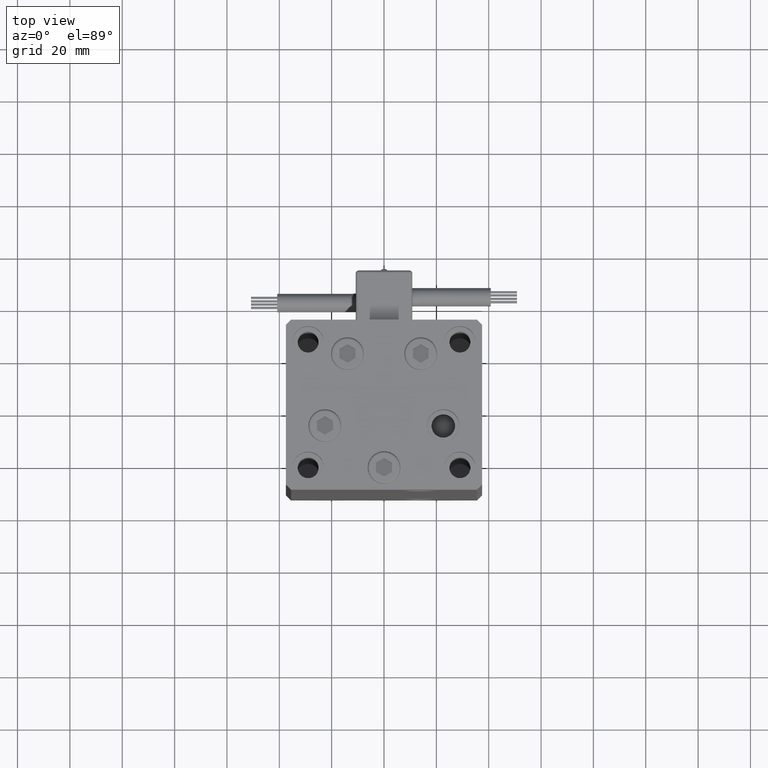
[diagram: clean part render]
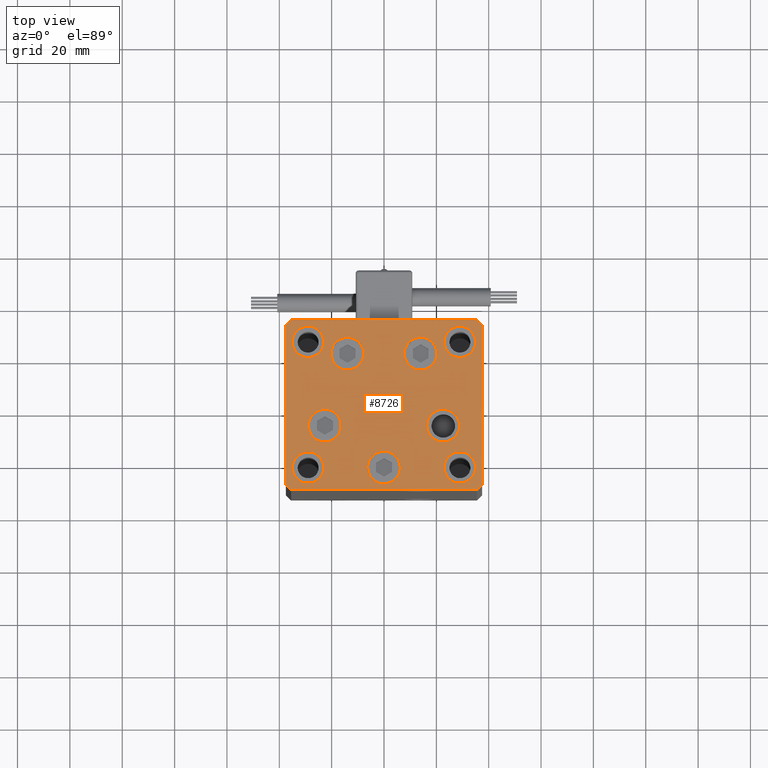
[diagram: same view with one face highlighted and labeled with its STEP entity id]
A machine part, top view. The second image highlights one B-rep face of the part: STEP entity #8726.
In plain terms, the highlighted planar face has unit normal (0, 0, 1).
Its self-contained STEP definition (entity closure, byte-faithful):
#148 = DIRECTION ( 'NONE',  ( 1.000000000000000000, 0.000000000000000000, 0.000000000000000000 ) ) ;
#366 = DIRECTION ( 'NONE',  ( 0.000000000000000000, 0.000000000000000000, 1.000000000000000000 ) ) ;
#425 = EDGE_CURVE ( 'NONE', #35460, #48251, #51963, .T. ) ;
#818 = EDGE_CURVE ( 'NONE', #28901, #26019, #24781, .T. ) ;
#896 = AXIS2_PLACEMENT_3D ( 'NONE', #24297, #28293, #52529 ) ;
#1064 = DIRECTION ( 'NONE',  ( 0.000000000000000000, 0.000000000000000000, 1.000000000000000000 ) ) ;
#1675 = LINE ( 'NONE', #5938, #32231 ) ;
#2451 = AXIS2_PLACEMENT_3D ( 'NONE', #14159, #17886, #47931 ) ;
#2489 = DIRECTION ( 'NONE',  ( -0.000000000000000000, 0.000000000000000000, 1.000000000000000000 ) ) ;
#2692 = DIRECTION ( 'NONE',  ( 1.000000000000000000, 0.000000000000000000, 0.000000000000000000 ) ) ;
#2762 = DIRECTION ( 'NONE',  ( 1.000000000000000000, 0.000000000000000000, 0.000000000000000000 ) ) ;
#3009 = VERTEX_POINT ( 'NONE', #30536 ) ;
#3216 = AXIS2_PLACEMENT_3D ( 'NONE', #21017, #37264, #44996 ) ;
#3414 = AXIS2_PLACEMENT_3D ( 'NONE', #33449, #45156, #148 ) ;
#3683 = ORIENTED_EDGE ( 'NONE', *, *, #9366, .T. ) ;
#4102 = CIRCLE ( 'NONE', #48344, 6.250000000000001776 ) ;
#4105 = DIRECTION ( 'NONE',  ( 0.000000000000000000, -0.000000000000000000, -1.000000000000000000 ) ) ;
#4222 = EDGE_CURVE ( 'NONE', #28403, #21371, #8697, .T. ) ;
#4321 = EDGE_LOOP ( 'NONE', ( #35862, #47704 ) ) ;
#4488 = DIRECTION ( 'NONE',  ( 0.000000000000000000, 0.000000000000000000, 1.000000000000000000 ) ) ;
#4495 = CARTESIAN_POINT ( 'NONE',  ( -37.50000000000001421, 30.49999999999998579, 0.000000000000000000 ) ) ;
#4711 = VERTEX_POINT ( 'NONE', #26300 ) ;
#4914 = VERTEX_POINT ( 'NONE', #33909 ) ;
#4915 = CIRCLE ( 'NONE', #3216, 5.999999999999998224 ) ;
#4934 = DIRECTION ( 'NONE',  ( 1.000000000000000000, 0.000000000000000000, 0.000000000000000000 ) ) ;
#5632 = ORIENTED_EDGE ( 'NONE', *, *, #23736, .T. ) ;
#5938 = CARTESIAN_POINT ( 'NONE',  ( 35.49999999999992184, 32.50000000000000711, 0.000000000000000000 ) ) ;
#5948 = VERTEX_POINT ( 'NONE', #20402 ) ;
#6260 = DIRECTION ( 'NONE',  ( 0.000000000000000000, -0.000000000000000000, -1.000000000000000000 ) ) ;
#6360 = CARTESIAN_POINT ( 'NONE',  ( -37.49999999999998579, -30.50000000000001421, 0.000000000000000000 ) ) ;
#6682 = DIRECTION ( 'NONE',  ( 0.000000000000000000, -0.000000000000000000, -1.000000000000000000 ) ) ;
#6946 = VERTEX_POINT ( 'NONE', #29527 ) ;
#7213 = AXIS2_PLACEMENT_3D ( 'NONE', #26963, #6682, #2692 ) ;
#7391 = EDGE_CURVE ( 'NONE', #51587, #7745, #9691, .T. ) ;
#7555 = ORIENTED_EDGE ( 'NONE', *, *, #17415, .T. ) ;
#7745 = VERTEX_POINT ( 'NONE', #47679 ) ;
#8069 = DIRECTION ( 'NONE',  ( 1.000000000000000000, 0.000000000000000000, 0.000000000000000000 ) ) ;
#8100 = DIRECTION ( 'NONE',  ( 1.000000000000000000, 0.000000000000000000, 0.000000000000000000 ) ) ;
#8697 = CIRCLE ( 'NONE', #45287, 6.250000000000000000 ) ;
#8726 = ADVANCED_FACE ( 'NONE', ( #15811, #31547, #39269, #23305, #23029, #39803, #47260, #19539, #19276, #39542 ), #10750, .T. ) ;
#8841 = CARTESIAN_POINT ( 'NONE',  ( -13.99106857963322703, 19.49999999999999645, 0.000000000000000000 ) ) ;
#9103 = EDGE_CURVE ( 'NONE', #4914, #43649, #31042, .T. ) ;
#9209 = EDGE_CURVE ( 'NONE', #7745, #51587, #30209, .T. ) ;
#9366 = EDGE_CURVE ( 'NONE', #27630, #4711, #44573, .T. ) ;
#9451 = AXIS2_PLACEMENT_3D ( 'NONE', #22658, #1064, #17319 ) ;
#9465 = DIRECTION ( 'NONE',  ( 0.000000000000000000, -0.000000000000000000, -1.000000000000000000 ) ) ;
#9567 = DIRECTION ( 'NONE',  ( -0.7071067811865426878, -0.7071067811865524577, 0.000000000000000000 ) ) ;
#9679 = EDGE_CURVE ( 'NONE', #3009, #14343, #37182, .T. ) ;
#9691 = CIRCLE ( 'NONE', #39480, 6.250000000000000000 ) ;
#9763 = AXIS2_PLACEMENT_3D ( 'NONE', #43991, #39995, #15212 ) ;
#9830 = ORIENTED_EDGE ( 'NONE', *, *, #9209, .T. ) ;
#9943 = DIRECTION ( 'NONE',  ( -1.000000000000000000, -1.954618001100629052E-16, 0.000000000000000000 ) ) ;
#10285 = VECTOR ( 'NONE', #50687, 999.9999999999998863 ) ;
#10493 = VERTEX_POINT ( 'NONE', #12030 ) ;
#10548 = ORIENTED_EDGE ( 'NONE', *, *, #7391, .T. ) ;
#10730 = EDGE_LOOP ( 'NONE', ( #25246, #19054 ) ) ;
#10750 = PLANE ( 'NONE',  #11444 ) ;
#10984 = ORIENTED_EDGE ( 'NONE', *, *, #49451, .F. ) ;
#11161 = AXIS2_PLACEMENT_3D ( 'NONE', #13209, #9465, #4934 ) ;
#11215 = CARTESIAN_POINT ( 'NONE',  ( -35.00000000000000711, -23.99999999999999289, 0.000000000000000000 ) ) ;
#11444 = AXIS2_PLACEMENT_3D ( 'NONE', #43257, #2489, #2762 ) ;
#12030 = CARTESIAN_POINT ( 'NONE',  ( -37.50000000000001421, 30.49999999999998579, 0.000000000000000000 ) ) ;
#12111 = CARTESIAN_POINT ( 'NONE',  ( 13.99106857963322348, 19.50000000000000000, 0.000000000000000000 ) ) ;
#12475 = CARTESIAN_POINT ( 'NONE',  ( -23.00000000000001421, -23.99999999999999289, 0.000000000000000000 ) ) ;
#12610 = CARTESIAN_POINT ( 'NONE',  ( 35.50000000000000711, -32.50000000000000711, 0.000000000000000000 ) ) ;
#12718 = EDGE_LOOP ( 'NONE', ( #28463, #44499 ) ) ;
#13195 = DIRECTION ( 'NONE',  ( -1.478780668045802821E-15, 1.000000000000000000, 0.000000000000000000 ) ) ;
#13209 = CARTESIAN_POINT ( 'NONE',  ( 22.62741699796951877, -8.000000000000000000, 0.000000000000000000 ) ) ;
#13343 = CARTESIAN_POINT ( 'NONE',  ( -37.49999999999998579, -30.50000000000001421, 0.000000000000000000 ) ) ;
#13467 = CARTESIAN_POINT ( 'NONE',  ( 37.49999999999992184, 30.50000000000001066, 0.000000000000000000 ) ) ;
#13849 = DIRECTION ( 'NONE',  ( 0.000000000000000000, -0.000000000000000000, -1.000000000000000000 ) ) ;
#14159 = CARTESIAN_POINT ( 'NONE',  ( 29.00000000000001066, 24.00000000000000711, 0.000000000000000000 ) ) ;
#14242 = LINE ( 'NONE', #42226, #22613 ) ;
#14343 = VERTEX_POINT ( 'NONE', #13467 ) ;
#14867 = EDGE_CURVE ( 'NONE', #22699, #40765, #46103, .T. ) ;
#15045 = CARTESIAN_POINT ( 'NONE',  ( -6.249999999999997335, -24.00000000000000000, 0.000000000000000000 ) ) ;
#15212 = DIRECTION ( 'NONE',  ( 1.000000000000000000, 0.000000000000000000, 0.000000000000000000 ) ) ;
#15811 = FACE_BOUND ( 'NONE', #20854, .T. ) ;
#16131 = ORIENTED_EDGE ( 'NONE', *, *, #4222, .T. ) ;
#17319 = DIRECTION ( 'NONE',  ( 1.000000000000000000, 0.000000000000000000, 0.000000000000000000 ) ) ;
#17415 = EDGE_CURVE ( 'NONE', #40765, #31739, #14242, .T. ) ;
#17863 = CARTESIAN_POINT ( 'NONE',  ( -16.37741699796951877, -8.000000000000005329, 0.000000000000000000 ) ) ;
#17886 = DIRECTION ( 'NONE',  ( 0.000000000000000000, 0.000000000000000000, 1.000000000000000000 ) ) ;
#18560 = DIRECTION ( 'NONE',  ( 1.000000000000000000, 0.000000000000000000, 0.000000000000000000 ) ) ;
#18800 = ORIENTED_EDGE ( 'NONE', *, *, #9679, .T. ) ;
#18976 = CARTESIAN_POINT ( 'NONE',  ( -29.00000000000001066, -23.99999999999999289, 0.000000000000000000 ) ) ;
#19054 = ORIENTED_EDGE ( 'NONE', *, *, #425, .T. ) ;
#19276 = FACE_BOUND ( 'NONE', #4321, .T. ) ;
#19539 = FACE_BOUND ( 'NONE', #40832, .T. ) ;
#19669 = ORIENTED_EDGE ( 'NONE', *, *, #25514, .T. ) ;
#19989 = ORIENTED_EDGE ( 'NONE', *, *, #44684, .F. ) ;
#20402 = CARTESIAN_POINT ( 'NONE',  ( -35.50000000000002842, 32.49999999999999289, 0.000000000000000000 ) ) ;
#20816 = EDGE_CURVE ( 'NONE', #31739, #3009, #32032, .T. ) ;
#20854 = EDGE_LOOP ( 'NONE', ( #19669, #16131 ) ) ;
#21017 = CARTESIAN_POINT ( 'NONE',  ( -29.00000000000001066, 24.00000000000000711, 0.000000000000000000 ) ) ;
#21351 = EDGE_CURVE ( 'NONE', #4711, #27630, #31158, .T. ) ;
#21371 = VERTEX_POINT ( 'NONE', #41392 ) ;
#21586 = DIRECTION ( 'NONE',  ( 1.000000000000000000, 0.000000000000000000, 0.000000000000000000 ) ) ;
#22068 = DIRECTION ( 'NONE',  ( 1.000000000000000000, 0.000000000000000000, 0.000000000000000000 ) ) ;
#22227 = AXIS2_PLACEMENT_3D ( 'NONE', #31354, #43595, #18560 ) ;
#22297 = VERTEX_POINT ( 'NONE', #42827 ) ;
#22462 = CARTESIAN_POINT ( 'NONE',  ( 37.49999999999992184, 30.50000000000001066, 0.000000000000000000 ) ) ;
#22613 = VECTOR ( 'NONE', #34257, 1000.000000000000000 ) ;
#22658 = CARTESIAN_POINT ( 'NONE',  ( -29.00000000000001066, 24.00000000000000711, 0.000000000000000000 ) ) ;
#22699 = VERTEX_POINT ( 'NONE', #6360 ) ;
#22989 = DIRECTION ( 'NONE',  ( 0.000000000000000000, 0.000000000000000000, 1.000000000000000000 ) ) ;
#23029 = FACE_BOUND ( 'NONE', #10730, .T. ) ;
#23079 = CARTESIAN_POINT ( 'NONE',  ( -23.00000000000001421, 24.00000000000000711, 0.000000000000000000 ) ) ;
#23253 = DIRECTION ( 'NONE',  ( 1.000000000000000000, 0.000000000000000000, 0.000000000000000000 ) ) ;
#23305 = FACE_BOUND ( 'NONE', #26169, .T. ) ;
#23736 = EDGE_CURVE ( 'NONE', #10493, #22699, #48755, .T. ) ;
#24297 = CARTESIAN_POINT ( 'NONE',  ( -22.62741699796951877, -8.000000000000005329, 0.000000000000000000 ) ) ;
#24605 = DIRECTION ( 'NONE',  ( 0.000000000000000000, -0.000000000000000000, -1.000000000000000000 ) ) ;
#24781 = CIRCLE ( 'NONE', #22227, 5.999999999999998224 ) ;
#24920 = CIRCLE ( 'NONE', #38508, 6.000000000000005329 ) ;
#25147 = DIRECTION ( 'NONE',  ( 1.000000000000000000, 0.000000000000000000, 0.000000000000000000 ) ) ;
#25246 = ORIENTED_EDGE ( 'NONE', *, *, #45076, .T. ) ;
#25287 = DIRECTION ( 'NONE',  ( 4.550094363217855288E-16, -1.000000000000000000, 0.000000000000000000 ) ) ;
#25514 = EDGE_CURVE ( 'NONE', #21371, #28403, #37232, .T. ) ;
#25560 = ORIENTED_EDGE ( 'NONE', *, *, #20816, .T. ) ;
#25693 = VERTEX_POINT ( 'NONE', #45797 ) ;
#25850 = CARTESIAN_POINT ( 'NONE',  ( 13.99106857963322348, 19.50000000000000000, 0.000000000000000000 ) ) ;
#26019 = VERTEX_POINT ( 'NONE', #12475 ) ;
#26169 = EDGE_LOOP ( 'NONE', ( #10548, #9830 ) ) ;
#26267 = DIRECTION ( 'NONE',  ( 1.000000000000000000, 0.000000000000000000, 0.000000000000000000 ) ) ;
#26300 = CARTESIAN_POINT ( 'NONE',  ( 7.741068579633223479, 19.50000000000000000, 0.000000000000000000 ) ) ;
#26963 = CARTESIAN_POINT ( 'NONE',  ( 2.939152317953647500E-15, -24.00000000000000000, 0.000000000000000000 ) ) ;
#27061 = EDGE_LOOP ( 'NONE', ( #47927, #45480 ) ) ;
#27200 = CARTESIAN_POINT ( 'NONE',  ( 35.00000000000001421, 24.00000000000000711, 0.000000000000000000 ) ) ;
#27630 = VERTEX_POINT ( 'NONE', #44634 ) ;
#27680 = ORIENTED_EDGE ( 'NONE', *, *, #14867, .T. ) ;
#28293 = DIRECTION ( 'NONE',  ( 0.000000000000000000, -0.000000000000000000, -1.000000000000000000 ) ) ;
#28403 = VERTEX_POINT ( 'NONE', #49414 ) ;
#28463 = ORIENTED_EDGE ( 'NONE', *, *, #36476, .T. ) ;
#28901 = VERTEX_POINT ( 'NONE', #11215 ) ;
#29401 = CARTESIAN_POINT ( 'NONE',  ( 29.00000000000001066, 24.00000000000000711, 0.000000000000000000 ) ) ;
#29527 = CARTESIAN_POINT ( 'NONE',  ( 28.87741699796952233, -8.000000000000000000, 0.000000000000000000 ) ) ;
#29992 = CARTESIAN_POINT ( 'NONE',  ( -28.87741699796952233, -8.000000000000005329, 0.000000000000000000 ) ) ;
#30097 = AXIS2_PLACEMENT_3D ( 'NONE', #25850, #13849, #21586 ) ;
#30209 = CIRCLE ( 'NONE', #7213, 6.250000000000000000 ) ;
#30426 = DIRECTION ( 'NONE',  ( 0.000000000000000000, -0.000000000000000000, -1.000000000000000000 ) ) ;
#30536 = CARTESIAN_POINT ( 'NONE',  ( 37.50000000000001421, -30.50000000000000711, 0.000000000000000000 ) ) ;
#30626 = EDGE_CURVE ( 'NONE', #6946, #38996, #30655, .T. ) ;
#30655 = CIRCLE ( 'NONE', #3414, 6.250000000000001776 ) ;
#30805 = CIRCLE ( 'NONE', #34236, 6.000000000000005329 ) ;
#31042 = CIRCLE ( 'NONE', #9763, 6.000000000000005329 ) ;
#31089 = VECTOR ( 'NONE', #9567, 1000.000000000000000 ) ;
#31158 = CIRCLE ( 'NONE', #43041, 6.250000000000000000 ) ;
#31354 = CARTESIAN_POINT ( 'NONE',  ( -29.00000000000001066, -23.99999999999999289, 0.000000000000000000 ) ) ;
#31547 = FACE_BOUND ( 'NONE', #50068, .T. ) ;
#31739 = VERTEX_POINT ( 'NONE', #12610 ) ;
#32032 = LINE ( 'NONE', #35760, #38908 ) ;
#32231 = VECTOR ( 'NONE', #9943, 1000.000000000000000 ) ;
#33150 = EDGE_CURVE ( 'NONE', #14343, #25693, #34452, .T. ) ;
#33449 = CARTESIAN_POINT ( 'NONE',  ( 22.62741699796951877, -8.000000000000000000, 0.000000000000000000 ) ) ;
#33530 = EDGE_CURVE ( 'NONE', #42131, #43289, #39245, .T. ) ;
#33785 = VECTOR ( 'NONE', #25287, 1000.000000000000000 ) ;
#33909 = CARTESIAN_POINT ( 'NONE',  ( 23.00000000000001066, -23.99999999999999289, 0.000000000000000000 ) ) ;
#34236 = AXIS2_PLACEMENT_3D ( 'NONE', #29401, #366, #25147 ) ;
#34257 = DIRECTION ( 'NONE',  ( 1.000000000000000000, 9.773090005503140331E-17, 0.000000000000000000 ) ) ;
#34359 = VECTOR ( 'NONE', #13195, 1000.000000000000000 ) ;
#34402 = DIRECTION ( 'NONE',  ( 0.7071067811865474617, -0.7071067811865474617, 0.000000000000000000 ) ) ;
#34452 = LINE ( 'NONE', #22462, #10285 ) ;
#35460 = VERTEX_POINT ( 'NONE', #17863 ) ;
#35753 = AXIS2_PLACEMENT_3D ( 'NONE', #18976, #22989, #47481 ) ;
#35760 = CARTESIAN_POINT ( 'NONE',  ( 35.50000000000000711, -32.50000000000000711, 0.000000000000000000 ) ) ;
#35862 = ORIENTED_EDGE ( 'NONE', *, *, #43553, .F. ) ;
#36257 = ORIENTED_EDGE ( 'NONE', *, *, #46191, .T. ) ;
#36476 = EDGE_CURVE ( 'NONE', #38996, #6946, #46031, .T. ) ;
#37182 = LINE ( 'NONE', #48920, #34359 ) ;
#37232 = CIRCLE ( 'NONE', #45738, 6.250000000000000000 ) ;
#37264 = DIRECTION ( 'NONE',  ( 0.000000000000000000, 0.000000000000000000, 1.000000000000000000 ) ) ;
#38243 = CARTESIAN_POINT ( 'NONE',  ( -22.62741699796951877, -8.000000000000005329, 0.000000000000000000 ) ) ;
#38508 = AXIS2_PLACEMENT_3D ( 'NONE', #41008, #4488, #22068 ) ;
#38780 = EDGE_CURVE ( 'NONE', #22297, #45354, #30805, .T. ) ;
#38908 = VECTOR ( 'NONE', #48271, 1000.000000000000000 ) ;
#38996 = VERTEX_POINT ( 'NONE', #47346 ) ;
#39049 = ORIENTED_EDGE ( 'NONE', *, *, #818, .F. ) ;
#39245 = CIRCLE ( 'NONE', #9451, 5.999999999999998224 ) ;
#39269 = FACE_BOUND ( 'NONE', #12718, .T. ) ;
#39466 = CARTESIAN_POINT ( 'NONE',  ( -13.99106857963322703, 19.49999999999999645, 0.000000000000000000 ) ) ;
#39480 = AXIS2_PLACEMENT_3D ( 'NONE', #42947, #47210, #23253 ) ;
#39542 = FACE_OUTER_BOUND ( 'NONE', #43054, .T. ) ;
#39803 = FACE_BOUND ( 'NONE', #27061, .T. ) ;
#39995 = DIRECTION ( 'NONE',  ( 0.000000000000000000, 0.000000000000000000, 1.000000000000000000 ) ) ;
#40266 = EDGE_CURVE ( 'NONE', #43649, #4914, #24920, .T. ) ;
#40765 = VERTEX_POINT ( 'NONE', #41087 ) ;
#40832 = EDGE_LOOP ( 'NONE', ( #40850, #19989 ) ) ;
#40850 = ORIENTED_EDGE ( 'NONE', *, *, #33530, .F. ) ;
#41008 = CARTESIAN_POINT ( 'NONE',  ( 29.00000000000001066, -23.99999999999999289, 0.000000000000000000 ) ) ;
#41087 = CARTESIAN_POINT ( 'NONE',  ( -35.49999999999998579, -32.50000000000001421, 0.000000000000000000 ) ) ;
#41392 = CARTESIAN_POINT ( 'NONE',  ( -20.24106857963322881, 19.49999999999999645, 0.000000000000000000 ) ) ;
#42131 = VERTEX_POINT ( 'NONE', #23079 ) ;
#42226 = CARTESIAN_POINT ( 'NONE',  ( -35.49999999999998579, -32.50000000000001421, 0.000000000000000000 ) ) ;
#42749 = EDGE_CURVE ( 'NONE', #5948, #10493, #49801, .T. ) ;
#42827 = CARTESIAN_POINT ( 'NONE',  ( 23.00000000000001066, 24.00000000000000711, 0.000000000000000000 ) ) ;
#42947 = CARTESIAN_POINT ( 'NONE',  ( 2.939152317953647500E-15, -24.00000000000000000, 0.000000000000000000 ) ) ;
#43041 = AXIS2_PLACEMENT_3D ( 'NONE', #12111, #4105, #8100 ) ;
#43054 = EDGE_LOOP ( 'NONE', ( #27680, #7555, #25560, #18800, #50664, #36257, #49926, #5632 ) ) ;
#43257 = CARTESIAN_POINT ( 'NONE',  ( 0.000000000000000000, 0.000000000000000000, 0.000000000000000000 ) ) ;
#43289 = VERTEX_POINT ( 'NONE', #46991 ) ;
#43553 = EDGE_CURVE ( 'NONE', #45354, #22297, #50957, .T. ) ;
#43595 = DIRECTION ( 'NONE',  ( 0.000000000000000000, 0.000000000000000000, 1.000000000000000000 ) ) ;
#43649 = VERTEX_POINT ( 'NONE', #48457 ) ;
#43991 = CARTESIAN_POINT ( 'NONE',  ( 29.00000000000001066, -23.99999999999999289, 0.000000000000000000 ) ) ;
#44499 = ORIENTED_EDGE ( 'NONE', *, *, #30626, .T. ) ;
#44573 = CIRCLE ( 'NONE', #30097, 6.250000000000000000 ) ;
#44634 = CARTESIAN_POINT ( 'NONE',  ( 20.24106857963322526, 19.50000000000000000, 0.000000000000000000 ) ) ;
#44684 = EDGE_CURVE ( 'NONE', #43289, #42131, #4915, .T. ) ;
#44996 = DIRECTION ( 'NONE',  ( 1.000000000000000000, 0.000000000000000000, 0.000000000000000000 ) ) ;
#45076 = EDGE_CURVE ( 'NONE', #48251, #35460, #4102, .T. ) ;
#45128 = CIRCLE ( 'NONE', #35753, 5.999999999999998224 ) ;
#45156 = DIRECTION ( 'NONE',  ( 0.000000000000000000, -0.000000000000000000, -1.000000000000000000 ) ) ;
#45287 = AXIS2_PLACEMENT_3D ( 'NONE', #8841, #24605, #8069 ) ;
#45354 = VERTEX_POINT ( 'NONE', #27200 ) ;
#45480 = ORIENTED_EDGE ( 'NONE', *, *, #9103, .F. ) ;
#45738 = AXIS2_PLACEMENT_3D ( 'NONE', #39466, #30426, #46657 ) ;
#45797 = CARTESIAN_POINT ( 'NONE',  ( 35.49999999999992184, 32.50000000000000711, 0.000000000000000000 ) ) ;
#46031 = CIRCLE ( 'NONE', #11161, 6.250000000000001776 ) ;
#46062 = CARTESIAN_POINT ( 'NONE',  ( -35.50000000000002842, 32.49999999999999289, 0.000000000000000000 ) ) ;
#46103 = LINE ( 'NONE', #13343, #46458 ) ;
#46191 = EDGE_CURVE ( 'NONE', #25693, #5948, #1675, .T. ) ;
#46458 = VECTOR ( 'NONE', #34402, 1000.000000000000114 ) ;
#46657 = DIRECTION ( 'NONE',  ( 1.000000000000000000, 0.000000000000000000, 0.000000000000000000 ) ) ;
#46991 = CARTESIAN_POINT ( 'NONE',  ( -35.00000000000000711, 24.00000000000000711, 0.000000000000000000 ) ) ;
#47210 = DIRECTION ( 'NONE',  ( 0.000000000000000000, -0.000000000000000000, -1.000000000000000000 ) ) ;
#47260 = FACE_BOUND ( 'NONE', #52596, .T. ) ;
#47346 = CARTESIAN_POINT ( 'NONE',  ( 16.37741699796951877, -8.000000000000000000, 0.000000000000000000 ) ) ;
#47481 = DIRECTION ( 'NONE',  ( 1.000000000000000000, 0.000000000000000000, 0.000000000000000000 ) ) ;
#47558 = ORIENTED_EDGE ( 'NONE', *, *, #21351, .T. ) ;
#47679 = CARTESIAN_POINT ( 'NONE',  ( 6.250000000000002665, -24.00000000000000000, 0.000000000000000000 ) ) ;
#47704 = ORIENTED_EDGE ( 'NONE', *, *, #38780, .F. ) ;
#47927 = ORIENTED_EDGE ( 'NONE', *, *, #40266, .F. ) ;
#47931 = DIRECTION ( 'NONE',  ( 1.000000000000000000, 0.000000000000000000, 0.000000000000000000 ) ) ;
#48251 = VERTEX_POINT ( 'NONE', #29992 ) ;
#48271 = DIRECTION ( 'NONE',  ( 0.7071067811865487940, 0.7071067811865463515, 0.000000000000000000 ) ) ;
#48344 = AXIS2_PLACEMENT_3D ( 'NONE', #38243, #6260, #26267 ) ;
#48457 = CARTESIAN_POINT ( 'NONE',  ( 35.00000000000001421, -23.99999999999999289, 0.000000000000000000 ) ) ;
#48755 = LINE ( 'NONE', #4495, #33785 ) ;
#48920 = CARTESIAN_POINT ( 'NONE',  ( 37.50000000000001421, -30.50000000000000711, 0.000000000000000000 ) ) ;
#49414 = CARTESIAN_POINT ( 'NONE',  ( -7.741068579633227031, 19.49999999999999645, 0.000000000000000000 ) ) ;
#49451 = EDGE_CURVE ( 'NONE', #26019, #28901, #45128, .T. ) ;
#49801 = LINE ( 'NONE', #46062, #31089 ) ;
#49926 = ORIENTED_EDGE ( 'NONE', *, *, #42749, .T. ) ;
#50068 = EDGE_LOOP ( 'NONE', ( #47558, #3683 ) ) ;
#50664 = ORIENTED_EDGE ( 'NONE', *, *, #33150, .T. ) ;
#50687 = DIRECTION ( 'NONE',  ( -0.7071067811865482389, 0.7071067811865469066, 0.000000000000000000 ) ) ;
#50957 = CIRCLE ( 'NONE', #2451, 6.000000000000005329 ) ;
#51587 = VERTEX_POINT ( 'NONE', #15045 ) ;
#51963 = CIRCLE ( 'NONE', #896, 6.250000000000001776 ) ;
#52529 = DIRECTION ( 'NONE',  ( 1.000000000000000000, 0.000000000000000000, 0.000000000000000000 ) ) ;
#52596 = EDGE_LOOP ( 'NONE', ( #10984, #39049 ) ) ;